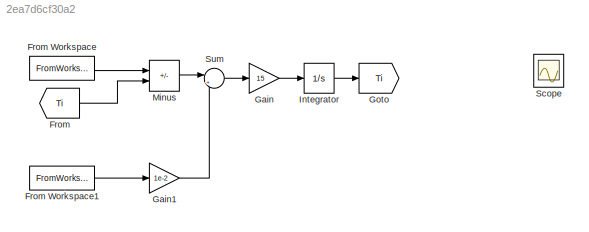
MODEL slx_2ea7d6cf30a2
KIND model
CONFIG AbsTol = auto
CONFIG EnableMultiTasking = off
CONFIG FixedStep = auto
CONFIG MaxStep = auto
CONFIG MinStep = auto
CONFIG RelTol = 1e-3
CONFIG SampleTimeConstraint = Unconstrained
CONFIG SolverName = VariableStepAuto
CONFIG StartTime = 0.0
CONFIG StopTime = 10.0
BLOCK [From] From
  GotoTag = Ti
BLOCK [FromWorkspace] From Workspace
  VariableName = Te
BLOCK [FromWorkspace] From Workspace1
  VariableName = Re
BLOCK [Gain] Gain
  Gain = 15
BLOCK [Gain] Gain1
  Gain = 1e-2
BLOCK [Goto] Goto
  GotoTag = Ti
BLOCK [Integrator] Integrator
  InitialCondition = Te.signals.values(1)
  Ports = [1, 1]
BLOCK [Sum] Minus
  IconShape = rectangular
  Inputs = +-
  Ports = [2, 1]
BLOCK [Scope] Scope
  Floating = off
  NumInputPorts = 2
  Ports = [2]
  ScopeSpecificationString = Simulink.scopes.TimeScopeBlockCfg('CurrentConfiguration', extmgr.ConfigurationSet(extmgr.Configuration('Core','General UI',true),extmgr.Configuration('Core','Source UI',true),extmgr.Configuration('Sources','WiredSimulink',true),extmgr.Configuration('Visuals','Time Domain',true,'SerializedDisplays',{struct('MinYLimReal','-2.58281','MaxYLimReal','27.37214','YLabelReal','','MinYLimMag','0.00000','Max...<+1407ch>
BLOCK [Sum] Sum
  Inputs = |++
  Ports = [2, 1]
LINE From Workspace1:1 -> Gain1:1
LINE From Workspace:1 -> Minus:1
LINE From:1 -> Minus:2
LINE Gain1:1 -> Sum:2
LINE Gain:1 -> Integrator:1
LINE Integrator:1 -> Goto:1
LINE Minus:1 -> Sum:1
LINE Sum:1 -> Gain:1
